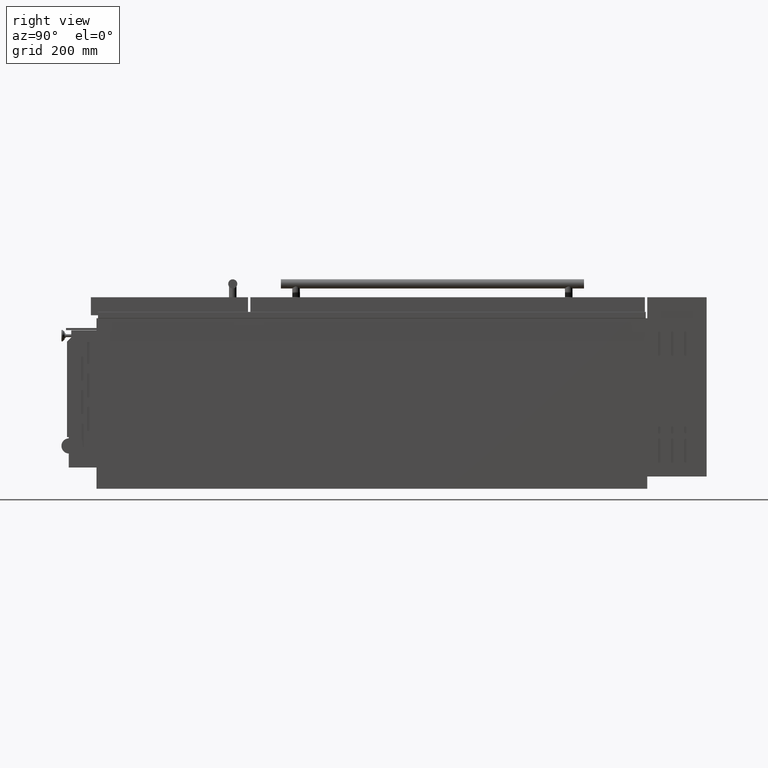
[diagram: clean part render]
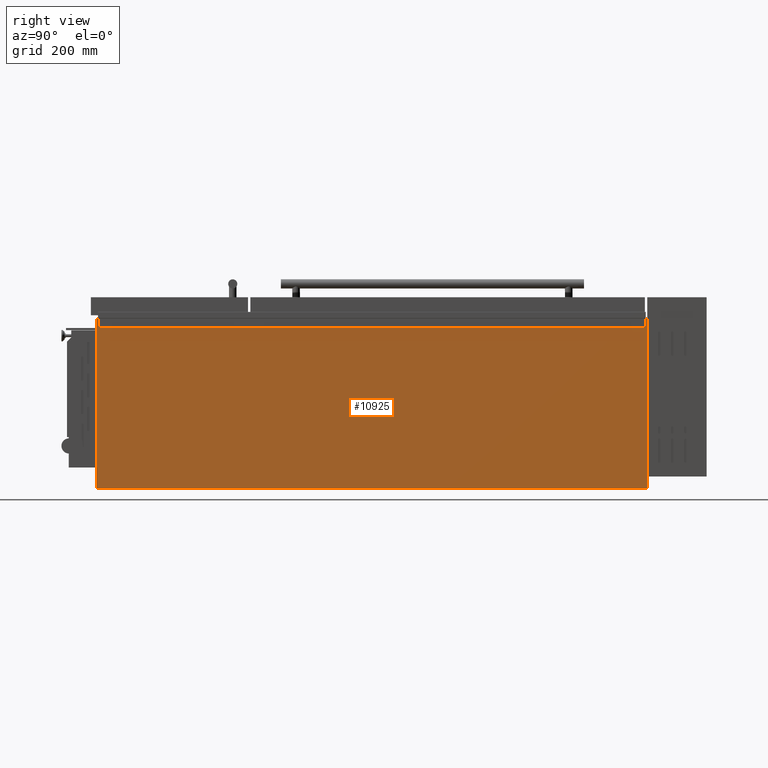
[diagram: same view with one face highlighted and labeled with its STEP entity id]
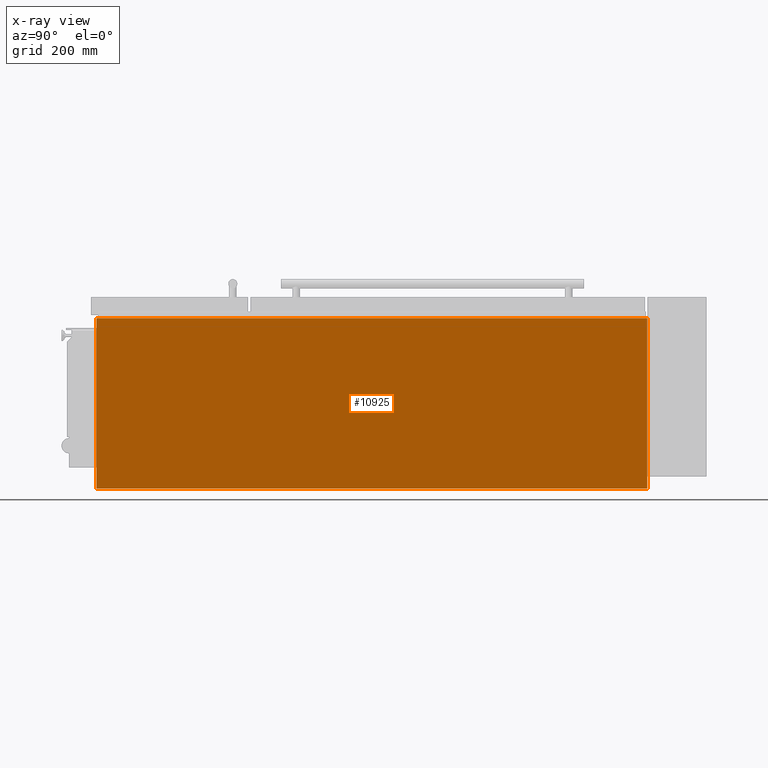
[diagram: x-ray of the same camera — body ghosted, the highlighted face saturated]
A machine part, right view. The second image highlights one B-rep face of the part: STEP entity #10925.
The next image is the same camera in x-ray: the body ghosted, the highlighted face saturated — about 0% of this face is hidden behind the body in this view.
In plain terms, the highlighted planar face has unit normal (1, 0, 0).
Its self-contained STEP definition (entity closure, byte-faithful):
#535 = LINE ( 'NONE', #8692, #17413 ) ;
#1565 = VECTOR ( 'NONE', #19210, 1000.000000000000000 ) ;
#1908 = ORIENTED_EDGE ( 'NONE', *, *, #12127, .T. ) ;
#2125 = ORIENTED_EDGE ( 'NONE', *, *, #16267, .F. ) ;
#2275 = PLANE ( 'NONE',  #16980 ) ;
#2436 = VECTOR ( 'NONE', #8521, 1000.000000000000000 ) ;
#2746 = DIRECTION ( 'NONE',  ( 0.0000000000000000000, -1.000000000000000000, -1.164549246997594400E-016 ) ) ;
#3129 = LINE ( 'NONE', #18893, #2436 ) ;
#3897 = EDGE_CURVE ( 'NONE', #3984, #8488, #535, .T. ) ;
#3984 = VERTEX_POINT ( 'NONE', #12241 ) ;
#6211 = CARTESIAN_POINT ( 'NONE',  ( 443.0000000000000000, -856.3500000000000200, 279.9999999999999400 ) ) ;
#6571 = EDGE_LOOP ( 'NONE', ( #2125, #1908, #13026, #14847 ) ) ;
#7238 = FACE_OUTER_BOUND ( 'NONE', #6571, .T. ) ;
#8488 = VERTEX_POINT ( 'NONE', #6211 ) ;
#8521 = DIRECTION ( 'NONE',  ( -0.0000000000000000000, -0.0000000000000000000, 1.000000000000000000 ) ) ;
#8565 = DIRECTION ( 'NONE',  ( -0.0000000000000000000, -0.0000000000000000000, 1.000000000000000000 ) ) ;
#8692 = CARTESIAN_POINT ( 'NONE',  ( 443.0000000000000000, 953.3500000000001400, 280.0000000000001700 ) ) ;
#9124 = LINE ( 'NONE', #12575, #13329 ) ;
#9672 = DIRECTION ( 'NONE',  ( 1.000000000000000000, 0.0000000000000000000, 0.0000000000000000000 ) ) ;
#10423 = EDGE_CURVE ( 'NONE', #16633, #3984, #9124, .T. ) ;
#10925 = ADVANCED_FACE ( 'NONE', ( #7238 ), #2275, .T. ) ;
#11084 = CARTESIAN_POINT ( 'NONE',  ( 443.0000000000000000, 953.3500000000001400, -279.9999999999998900 ) ) ;
#11634 = CARTESIAN_POINT ( 'NONE',  ( 443.0000000000000000, 0.0000000000000000000, 0.0000000000000000000 ) ) ;
#12127 = EDGE_CURVE ( 'NONE', #16618, #16633, #17718, .T. ) ;
#12241 = CARTESIAN_POINT ( 'NONE',  ( 443.0000000000000000, 953.3500000000001400, 280.0000000000001700 ) ) ;
#12575 = CARTESIAN_POINT ( 'NONE',  ( 443.0000000000000000, 953.3500000000001400, 280.0000000000001700 ) ) ;
#13026 = ORIENTED_EDGE ( 'NONE', *, *, #10423, .T. ) ;
#13329 = VECTOR ( 'NONE', #8565, 1000.000000000000000 ) ;
#14847 = ORIENTED_EDGE ( 'NONE', *, *, #3897, .T. ) ;
#15267 = CARTESIAN_POINT ( 'NONE',  ( 443.0000000000000000, -856.3500000000000200, -280.0000000000000600 ) ) ;
#15681 = DIRECTION ( 'NONE',  ( 0.0000000000000000000, 0.0000000000000000000, -1.000000000000000000 ) ) ;
#16267 = EDGE_CURVE ( 'NONE', #16618, #8488, #3129, .T. ) ;
#16618 = VERTEX_POINT ( 'NONE', #15267 ) ;
#16633 = VERTEX_POINT ( 'NONE', #11084 ) ;
#16980 = AXIS2_PLACEMENT_3D ( 'NONE', #11634, #9672, #15681 ) ;
#17413 = VECTOR ( 'NONE', #2746, 1000.000000000000000 ) ;
#17570 = CARTESIAN_POINT ( 'NONE',  ( 443.0000000000000000, 953.3500000000001400, -279.9999999999998900 ) ) ;
#17718 = LINE ( 'NONE', #17570, #1565 ) ;
#18893 = CARTESIAN_POINT ( 'NONE',  ( 443.0000000000000000, -856.3500000000000200, 279.9999999999999400 ) ) ;
#19210 = DIRECTION ( 'NONE',  ( -0.0000000000000000000, 1.000000000000000000, 1.164549246997594400E-016 ) ) ;